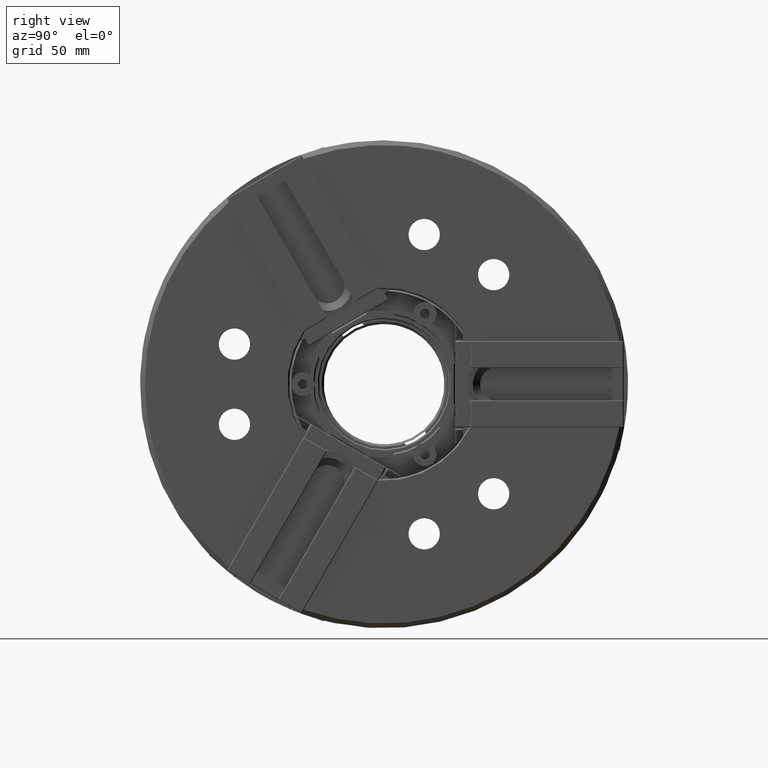
[diagram: clean part render]
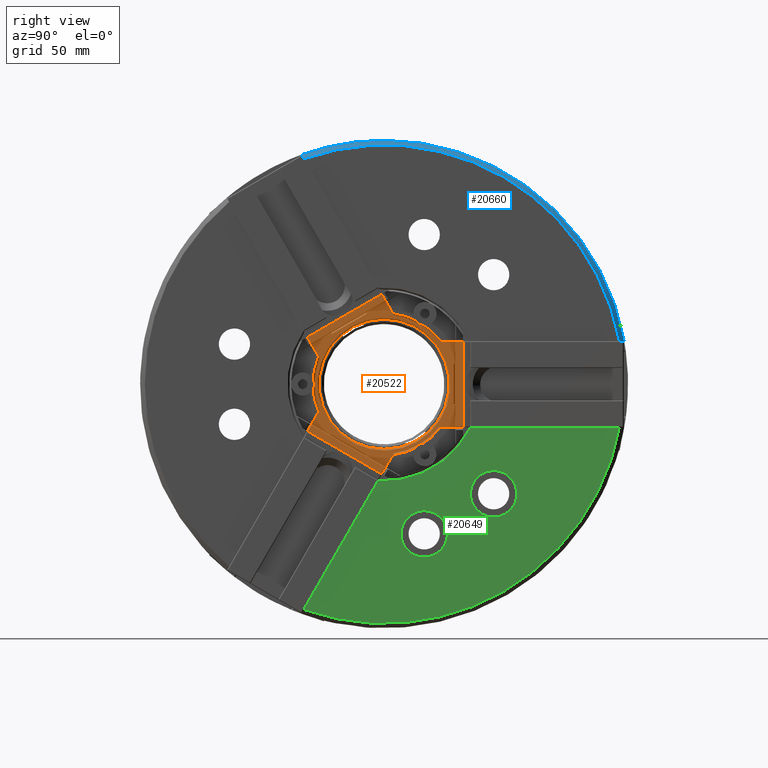
[diagram: same view with three faces highlighted in distinct colors, each labeled with its STEP entity id]
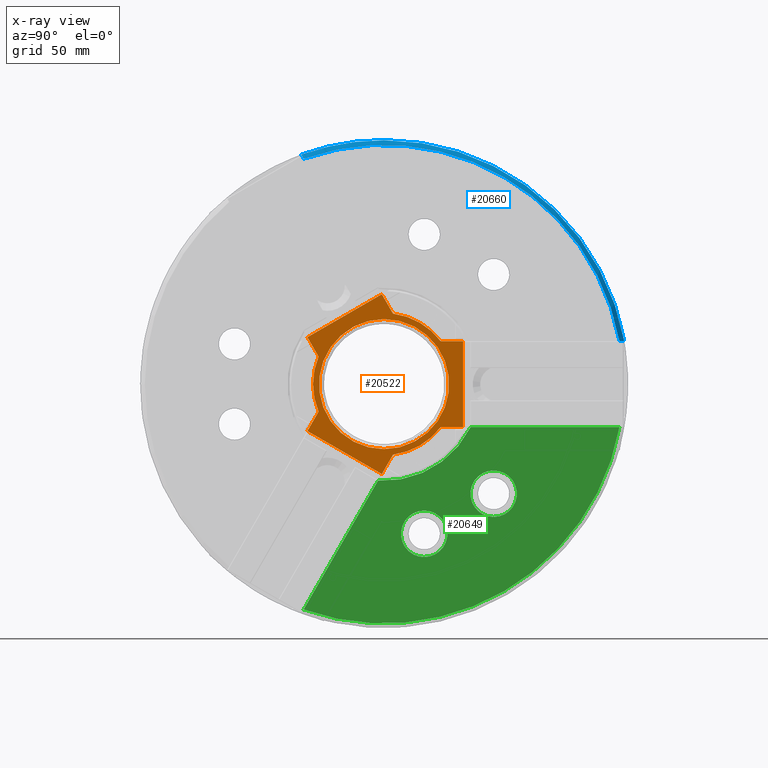
[diagram: x-ray of the same camera — body ghosted, the three highlighted faces saturated]
A machine part, right view with three faces highlighted in distinct colors.
The next image is the same camera in x-ray (body ghosted, the three faces saturated) — at least one of them is partly hidden behind the body in this view.
Their STEP definitions:

[orange] entity #20522 — the highlighted planar face has unit normal (1, 0, 0).
#445=LINE('',#29974,#2543);
#446=LINE('',#29977,#2544);
#447=LINE('',#29979,#2545);
#448=LINE('',#29983,#2546);
#449=LINE('',#29985,#2547);
#450=LINE('',#29987,#2548);
#451=LINE('',#29991,#2549);
#452=LINE('',#29993,#2550);
#453=LINE('',#29995,#2551);
#2543=VECTOR('',#23805,1000.);
#2544=VECTOR('',#23806,1000.);
#2545=VECTOR('',#23807,1000.);
#2546=VECTOR('',#23810,1000.);
#2547=VECTOR('',#23811,1000.);
#2548=VECTOR('',#23812,1000.);
#2549=VECTOR('',#23815,1000.);
#2550=VECTOR('',#23816,1000.);
#2551=VECTOR('',#23817,1000.);
#4641=PLANE('',#21762);
#5505=ORIENTED_EDGE('',*,*,#11657,.F.);
#5506=ORIENTED_EDGE('',*,*,#11659,.T.);
#5507=ORIENTED_EDGE('',*,*,#11660,.F.);
#5508=ORIENTED_EDGE('',*,*,#11661,.T.);
#5509=ORIENTED_EDGE('',*,*,#11662,.T.);
#5510=ORIENTED_EDGE('',*,*,#11663,.T.);
#5511=ORIENTED_EDGE('',*,*,#11664,.F.);
#5512=ORIENTED_EDGE('',*,*,#11665,.T.);
#5513=ORIENTED_EDGE('',*,*,#11666,.T.);
#5514=ORIENTED_EDGE('',*,*,#11667,.T.);
#5515=ORIENTED_EDGE('',*,*,#11668,.F.);
#5516=ORIENTED_EDGE('',*,*,#11669,.T.);
#5517=ORIENTED_EDGE('',*,*,#11670,.T.);
#11657=EDGE_CURVE('',#14734,#14734,#16718,.T.);
#11659=EDGE_CURVE('',#14736,#14737,#445,.T.);
#11660=EDGE_CURVE('',#14738,#14737,#446,.T.);
#11661=EDGE_CURVE('',#14738,#14739,#447,.T.);
#11662=EDGE_CURVE('',#14739,#14740,#16720,.T.);
#11663=EDGE_CURVE('',#14740,#14741,#448,.T.);
#11664=EDGE_CURVE('',#14742,#14741,#449,.T.);
#11665=EDGE_CURVE('',#14742,#14743,#450,.T.);
#11666=EDGE_CURVE('',#14743,#14744,#16721,.T.);
#11667=EDGE_CURVE('',#14744,#14745,#451,.T.);
#11668=EDGE_CURVE('',#14746,#14745,#452,.T.);
#11669=EDGE_CURVE('',#14746,#14747,#453,.T.);
#11670=EDGE_CURVE('',#14747,#14736,#16722,.T.);
#14734=VERTEX_POINT('',#29970);
#14736=VERTEX_POINT('',#29975);
#14737=VERTEX_POINT('',#29976);
#14738=VERTEX_POINT('',#29978);
#14739=VERTEX_POINT('',#29980);
#14740=VERTEX_POINT('',#29982);
#14741=VERTEX_POINT('',#29984);
#14742=VERTEX_POINT('',#29986);
#14743=VERTEX_POINT('',#29988);
#14744=VERTEX_POINT('',#29990);
#14745=VERTEX_POINT('',#29992);
#14746=VERTEX_POINT('',#29994);
#14747=VERTEX_POINT('',#29996);
#16718=CIRCLE('',#21760,28.);
#16720=CIRCLE('',#21763,30.6);
#16721=CIRCLE('',#21764,30.6);
#16722=CIRCLE('',#21765,30.6);
#17453=EDGE_LOOP('',(#5505));
#17454=EDGE_LOOP('',(#5506,#5507,#5508,#5509,#5510,#5511,#5512,#5513,#5514,
#5515,#5516,#5517));
#18883=FACE_BOUND('',#17453,.T.);
#18884=FACE_BOUND('',#17454,.T.);
#20522=ADVANCED_FACE('',(#18883,#18884),#4641,.F.);
#21760=AXIS2_PLACEMENT_3D('',#29969,#23799,#23800);
#21762=AXIS2_PLACEMENT_3D('',#29973,#23803,#23804);
#21763=AXIS2_PLACEMENT_3D('',#29981,#23808,#23809);
#21764=AXIS2_PLACEMENT_3D('',#29989,#23813,#23814);
#21765=AXIS2_PLACEMENT_3D('',#29997,#23818,#23819);
#23799=DIRECTION('',(-1.,0.,0.));
#23800=DIRECTION('',(0.,0.,1.));
#23803=DIRECTION('',(1.,0.,0.));
#23804=DIRECTION('',(0.,0.,-1.));
#23805=DIRECTION('',(0.,-0.5,-0.866025403784439));
#23806=DIRECTION('',(0.,0.866025403784439,-0.5));
#23807=DIRECTION('',(0.,0.5,0.866025403784439));
#23808=DIRECTION('',(-1.,0.,0.));
#23809=DIRECTION('',(0.,0.,1.));
#23810=DIRECTION('',(0.,-0.5,0.866025403784439));
#23811=DIRECTION('',(0.,-0.866025403784439,-0.5));
#23812=DIRECTION('',(0.,0.5,-0.866025403784439));
#23813=DIRECTION('',(-1.,0.,0.));
#23814=DIRECTION('',(0.,0.,1.));
#23815=DIRECTION('',(0.,1.,0.));
#23816=DIRECTION('',(0.,-9.8381308244055E-17,1.));
#23817=DIRECTION('',(0.,-1.,0.));
#23818=DIRECTION('',(-1.,0.,0.));
#23819=DIRECTION('',(0.,0.,1.));
#29969=CARTESIAN_POINT('',(-7.22623456790121,0.,0.));
#29970=CARTESIAN_POINT('',(-7.22623456790121,0.,28.));
#29973=CARTESIAN_POINT('',(-7.22623456790121,0.,41.));
#29974=CARTESIAN_POINT('',(-7.22623456790123,33.7749907475931,21.5));
#29975=CARTESIAN_POINT('',(-7.22623456790124,3.8342840766239,-30.358825168635));
#29976=CARTESIAN_POINT('',(-7.22623456790123,-0.978529563058453,-38.6948629199254));
#29977=CARTESIAN_POINT('',(-7.22623456790121,-42.959552861205,-14.4571078178846));
#29978=CARTESIAN_POINT('',(-7.22623456790121,-33.0214695030827,-20.1948629199254));
#29979=CARTESIAN_POINT('',(-7.22623456790123,1.73205080756886,40.));
#29980=CARTESIAN_POINT('',(-7.22623456790124,-28.2086558634003,-11.858825168635));
#29981=CARTESIAN_POINT('',(-7.22623456790124,0.,0.));
#29982=CARTESIAN_POINT('',(-7.22623456790124,-28.2086558634003,11.858825168635));
#29983=CARTESIAN_POINT('',(-7.22623456790123,-33.7749907475931,21.5));
#29984=CARTESIAN_POINT('',(-7.22623456790123,-33.0214695030827,20.1948629199255));
#29985=CARTESIAN_POINT('',(-7.22623456790121,8.95955379506375,44.4326180219663));
#29986=CARTESIAN_POINT('',(-7.22623456790123,-0.978529563058493,38.6948629199255));
#29987=CARTESIAN_POINT('',(-7.22623456790123,-1.73205080756888,40.));
#29988=CARTESIAN_POINT('',(-7.22623456790124,3.83428407662392,30.358825168635));
#29989=CARTESIAN_POINT('',(-7.22623456790124,0.,0.));
#29990=CARTESIAN_POINT('',(-7.22623456790124,24.3743717867764,18.5));
#29991=CARTESIAN_POINT('',(-7.22623456790123,0.,18.5));
#29992=CARTESIAN_POINT('',(-7.22623456790123,33.9999990661412,18.5));
#29993=CARTESIAN_POINT('',(-7.22623456790121,33.9999990661412,-29.9755102040817));
#29994=CARTESIAN_POINT('',(-7.22623456790121,33.9999990661412,-18.5));
#29995=CARTESIAN_POINT('',(-7.22623456790123,0.,-18.5));
#29996=CARTESIAN_POINT('',(-7.22623456790124,24.3743717867764,-18.5));
#29997=CARTESIAN_POINT('',(-7.22623456790124,0.,0.));

[blue] entity #20660 — the highlighted conical surface has half-angle 45 deg.
#182=CONICAL_SURFACE('',#22132,103.,0.78539816339745);
#335=B_SPLINE_CURVE_WITH_KNOTS('',3,(#31171,#31172,#31173,#31174),
 .UNSPECIFIED.,.F.,.F.,(4,4),(4.37437277832342E-6,0.00208479088005423),
 .UNSPECIFIED.);
#6350=ORIENTED_EDGE('',*,*,#12170,.F.);
#6351=ORIENTED_EDGE('',*,*,#11789,.T.);
#6352=ORIENTED_EDGE('',*,*,#12191,.T.);
#6353=ORIENTED_EDGE('',*,*,#12192,.T.);
#6354=ORIENTED_EDGE('',*,*,#12193,.T.);
#6355=ORIENTED_EDGE('',*,*,#11822,.T.);
#11789=EDGE_CURVE('',#14850,#14849,#16772,.T.);
#11822=EDGE_CURVE('',#14881,#14880,#16783,.T.);
#12170=EDGE_CURVE('',#14850,#14880,#16895,.T.);
#12191=EDGE_CURVE('',#14849,#15146,#335,.T.);
#12192=EDGE_CURVE('',#15146,#15147,#16913,.T.);
#12193=EDGE_CURVE('',#15147,#14881,#16914,.T.);
#14849=VERTEX_POINT('',#30276);
#14850=VERTEX_POINT('',#30278);
#14880=VERTEX_POINT('',#30344);
#14881=VERTEX_POINT('',#30346);
#15146=VERTEX_POINT('',#31175);
#15147=VERTEX_POINT('',#31177);
#16772=CIRCLE('',#21850,9064.78025820737);
#16783=CIRCLE('',#21865,9064.77998387208);
#16895=CIRCLE('',#22102,105.);
#16913=CIRCLE('',#22133,103.);
#16914=CIRCLE('',#22134,9064.77998387208);
#17645=EDGE_LOOP('',(#6350,#6351,#6352,#6353,#6354,#6355));
#19075=FACE_BOUND('',#17645,.T.);
#20660=ADVANCED_FACE('',(#19075),#182,.T.);
#21850=AXIS2_PLACEMENT_3D('',#30277,#24049,#24050);
#21865=AXIS2_PLACEMENT_3D('',#30345,#24101,#24102);
#22102=AXIS2_PLACEMENT_3D('',#31132,#24744,#24745);
#22132=AXIS2_PLACEMENT_3D('',#31170,#24806,#24807);
#22133=AXIS2_PLACEMENT_3D('',#31176,#24808,#24809);
#22134=AXIS2_PLACEMENT_3D('',#31178,#24810,#24811);
#24049=DIRECTION('',(2.0929443535496E-10,0.866025403681388,0.500000000178488));
#24050=DIRECTION('',(0.712657999317402,-0.350755818455921,0.607526898028586));
#24101=DIRECTION('',(0.,0.,1.));
#24102=DIRECTION('',(0.71287863346115,0.701287426063354,0.));
#24744=DIRECTION('',(-1.,0.,0.));
#24745=DIRECTION('',(0.,0.,1.));
#24806=DIRECTION('',(-1.,0.,0.));
#24807=DIRECTION('',(0.,0.,1.));
#24808=DIRECTION('',(-1.,0.,0.));
#24809=DIRECTION('',(0.,0.,1.));
#24810=DIRECTION('',(0.,0.,1.));
#24811=DIRECTION('',(0.71287863346115,0.701287426063354,0.));
#30276=CARTESIAN_POINT('',(-2.68537503956246,-35.3824744994502,98.2842435305579));
#30277=CARTESIAN_POINT('',(-6463.31439763384,3143.86719372415,-5408.33770645389));
#30278=CARTESIAN_POINT('',(-3.22623456790122,-35.6572248664483,98.7601251255968));
#30344=CARTESIAN_POINT('',(-3.22623456790122,103.357389672921,18.5));
#30345=CARTESIAN_POINT('',(-6463.31420209661,-6255.69125047749,18.5));
#30346=CARTESIAN_POINT('',(-2.68537433930671,102.807888938924,18.5));
#31132=CARTESIAN_POINT('',(-3.22623456790122,0.,0.));
#31170=CARTESIAN_POINT('',(-1.22623456790123,0.,0.));
#31171=CARTESIAN_POINT('',(-2.68537503956245,-35.3824744994502,98.2842435305579));
#31172=CARTESIAN_POINT('',(-2.19893818271554,-35.1353496120296,97.8562106697306));
#31173=CARTESIAN_POINT('',(-1.71255720918965,-34.8881972309474,97.4281301884846));
#31174=CARTESIAN_POINT('',(-1.22623456790124,-34.6410161513776,97.));
#31175=CARTESIAN_POINT('',(-1.22623456790123,-34.6410161513776,97.));
#31176=CARTESIAN_POINT('',(-1.22623456790123,0.,0.));
#31177=CARTESIAN_POINT('',(-1.22623456790122,101.324972242779,18.5));
#31178=CARTESIAN_POINT('',(-6463.31420209661,-6255.69125047749,18.5));

[green] entity #20649 — the highlighted planar face has unit normal (-1, 0, 0).
#476=LINE('',#30155,#2574);
#676=LINE('',#30896,#2774);
#706=LINE('',#31153,#2804);
#707=LINE('',#31154,#2805);
#2574=VECTOR('',#23968,1000.);
#2774=VECTOR('',#24482,1000.);
#2804=VECTOR('',#24774,1000.);
#2805=VECTOR('',#24775,1000.);
#4719=PLANE('',#22115);
#6299=ORIENTED_EDGE('',*,*,#12183,.T.);
#6300=ORIENTED_EDGE('',*,*,#11733,.F.);
#6301=ORIENTED_EDGE('',*,*,#12184,.F.);
#6302=ORIENTED_EDGE('',*,*,#12180,.F.);
#6303=ORIENTED_EDGE('',*,*,#12185,.T.);
#6304=ORIENTED_EDGE('',*,*,#12060,.T.);
#6305=ORIENTED_EDGE('',*,*,#12108,.T.);
#6306=ORIENTED_EDGE('',*,*,#12104,.T.);
#11733=EDGE_CURVE('',#14795,#14796,#476,.T.);
#12060=EDGE_CURVE('',#15071,#15070,#676,.T.);
#12104=EDGE_CURVE('',#15096,#15096,#16862,.T.);
#12108=EDGE_CURVE('',#15099,#15099,#16866,.T.);
#12180=EDGE_CURVE('',#15144,#15145,#16905,.T.);
#12183=EDGE_CURVE('',#15070,#14796,#16907,.T.);
#12184=EDGE_CURVE('',#15145,#14795,#706,.T.);
#12185=EDGE_CURVE('',#15144,#15071,#707,.T.);
#14795=VERTEX_POINT('',#30154);
#14796=VERTEX_POINT('',#30156);
#15070=VERTEX_POINT('',#30895);
#15071=VERTEX_POINT('',#30897);
#15096=VERTEX_POINT('',#31001);
#15099=VERTEX_POINT('',#31011);
#15144=VERTEX_POINT('',#31144);
#15145=VERTEX_POINT('',#31145);
#16862=CIRCLE('',#22030,10.);
#16866=CIRCLE('',#22037,10.);
#16905=CIRCLE('',#22113,103.);
#16907=CIRCLE('',#22116,41.6);
#17630=EDGE_LOOP('',(#6299,#6300,#6301,#6302,#6303,#6304));
#17631=EDGE_LOOP('',(#6305));
#17632=EDGE_LOOP('',(#6306));
#19060=FACE_BOUND('',#17630,.T.);
#19061=FACE_BOUND('',#17631,.T.);
#19062=FACE_BOUND('',#17632,.T.);
#20649=ADVANCED_FACE('',(#19060,#19061,#19062),#4719,.F.);
#22030=AXIS2_PLACEMENT_3D('',#31000,#24588,#24589);
#22037=AXIS2_PLACEMENT_3D('',#31010,#24602,#24603);
#22113=AXIS2_PLACEMENT_3D('',#31143,#24766,#24767);
#22115=AXIS2_PLACEMENT_3D('',#31151,#24770,#24771);
#22116=AXIS2_PLACEMENT_3D('',#31152,#24772,#24773);
#23968=DIRECTION('',(0.,0.5,0.866025403784439));
#24482=DIRECTION('',(0.,-1.,0.));
#24588=DIRECTION('',(-1.,0.,0.));
#24589=DIRECTION('',(0.,0.,-1.));
#24602=DIRECTION('',(-1.,0.,0.));
#24603=DIRECTION('',(0.,0.,-1.));
#24766=DIRECTION('',(-1.,0.,0.));
#24767=DIRECTION('',(0.,0.,1.));
#24770=DIRECTION('',(-1.,0.,0.));
#24771=DIRECTION('',(0.,0.,1.));
#24772=DIRECTION('',(-1.,0.,0.));
#24773=DIRECTION('',(0.,0.,1.));
#24774=DIRECTION('',(0.,0.5,0.866025403784439));
#24775=DIRECTION('',(0.,-1.,0.));
#30154=CARTESIAN_POINT('',(-1.22623456790122,-2.68247449945016,-41.6461821230556));
#30155=CARTESIAN_POINT('',(-1.22623456790122,-139.285484156324,-278.249535315584));
#30156=CARTESIAN_POINT('',(-1.22623456790122,-2.60854613304051,-41.5181344363135));
#30895=CARTESIAN_POINT('',(-1.22623456790122,37.2600322061052,-18.5));
#30896=CARTESIAN_POINT('',(-1.22623456790122,310.613908252673,-18.5));
#30897=CARTESIAN_POINT('',(-1.22623456790122,37.4078889389246,-18.5));
#31000=CARTESIAN_POINT('',(-1.22623456790122,17.2632303083381,-64.4272526134809));
#31001=CARTESIAN_POINT('',(-1.22623456790122,17.2632303083381,-74.4272526134809));
#31010=CARTESIAN_POINT('',(-1.22623456790122,47.1640223051428,-47.1640223051427));
#31011=CARTESIAN_POINT('',(-1.22623456790122,47.1640223051428,-57.1640223051427));
#31143=CARTESIAN_POINT('',(-1.22623456790123,0.,0.));
#31144=CARTESIAN_POINT('',(-1.22623456790123,101.324972242779,-18.5));
#31145=CARTESIAN_POINT('',(-1.22623456790122,-34.6410161513775,-97.));
#31151=CARTESIAN_POINT('',(-1.22623456790122,0.,41.6));
#31152=CARTESIAN_POINT('',(-1.22623456790123,0.,0.));
#31153=CARTESIAN_POINT('',(-1.22623456790122,-139.285484156324,-278.249535315584));
#31154=CARTESIAN_POINT('',(-1.22623456790122,310.613908252673,-18.5));